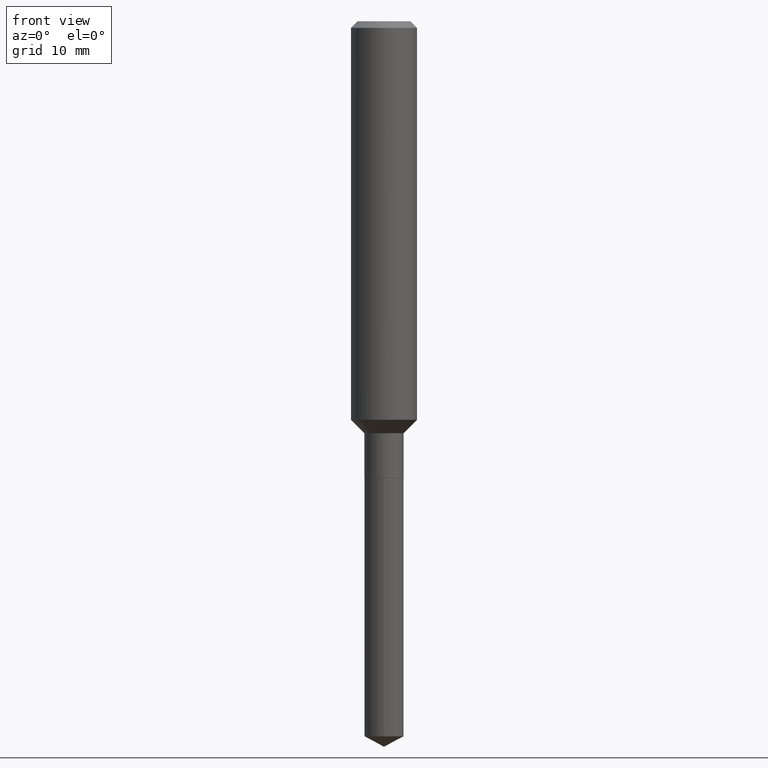
[diagram: clean part render]
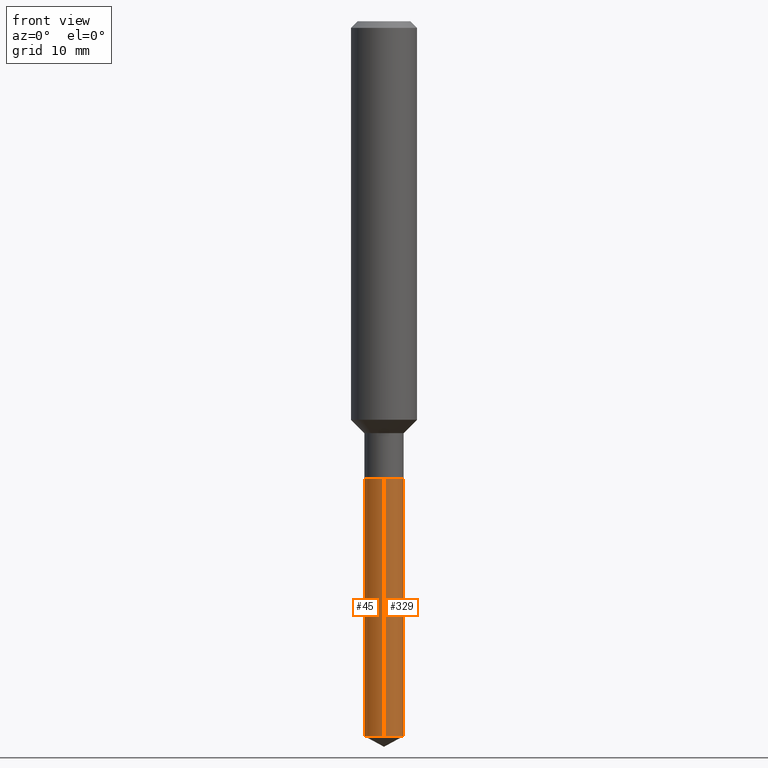
[diagram: same view with one multi-face feature highlighted, each face labeled with its STEP entity id]
A machine part, front view. The highlighted faces form ONE feature: a constant-radius fillet chain: 2 tangent blend faces with common blend radius 1.7856 mm. The faces share edges in the B-rep.
Their STEP definitions:
[1] entity #45 (Cylinder):
#29 = EDGE_CURVE ( 'NONE', #276, #231, #171, .T. ) ;
#31 = DIRECTION ( 'NONE',  ( -2.434697667680016346E-29, 3.506906222237609395E-15, 1.000000000000000000 ) ) ;
#41 = LINE ( 'NONE', #262, #268 ) ;
#45 = ADVANCED_FACE ( 'NONE', ( #398 ), #124, .T. ) ;
#57 = DIRECTION ( 'NONE',  ( -2.434697667680016346E-29, 3.506906222237609395E-15, 1.000000000000000000 ) ) ;
#59 = DIRECTION ( 'NONE',  ( -6.982962677686265133E-15, -1.000000000000000000, 3.885985766236505386E-15 ) ) ;
#60 = CIRCLE ( 'NONE', #294, 0.07030000000000000138 ) ;
#66 = DIRECTION ( 'NONE',  ( -2.434697667680016346E-29, 3.506906222237609395E-15, 1.000000000000000000 ) ) ;
#124 = CYLINDRICAL_SURFACE ( 'NONE', #312, 0.07030000000000000138 ) ;
#166 = DIRECTION ( 'NONE',  ( -6.982962677686266711E-15, -1.000000000000000000, 0.000000000000000000 ) ) ;
#169 = AXIS2_PLACEMENT_3D ( 'NONE', #427, #200, #166 ) ;
#171 = LINE ( 'NONE', #469, #430 ) ;
#174 = CARTESIAN_POINT ( 'NONE',  ( -4.909022762412819371E-16, -0.07030000000000893867, -2.560620826954198126 ) ) ;
#194 = CARTESIAN_POINT ( 'NONE',  ( -4.909022762413044196E-16, -0.07030000000000570515, -1.636599999999999611 ) ) ;
#200 = DIRECTION ( 'NONE',  ( -2.434697667680016346E-29, 3.506906222237609395E-15, 1.000000000000000000 ) ) ;
#219 = EDGE_CURVE ( 'NONE', #402, #276, #416, .T. ) ;
#230 = EDGE_CURVE ( 'NONE', #402, #433, #41, .T. ) ;
#231 = VERTEX_POINT ( 'NONE', #194 ) ;
#255 = CARTESIAN_POINT ( 'NONE',  ( 4.995115432394128591E-16, 0.07029999999999105020, -2.560620826954198126 ) ) ;
#262 = CARTESIAN_POINT ( 'NONE',  ( 4.995115432393903765E-16, 0.07029999999999428373, -1.636600000000000277 ) ) ;
#268 = VECTOR ( 'NONE', #352, 39.37007874015748143 ) ;
#276 = VERTEX_POINT ( 'NONE', #174 ) ;
#294 = AXIS2_PLACEMENT_3D ( 'NONE', #472, #66, #59 ) ;
#309 = EDGE_LOOP ( 'NONE', ( #449, #348, #395, #336 ) ) ;
#312 = AXIS2_PLACEMENT_3D ( 'NONE', #446, #57, #442 ) ;
#319 = EDGE_CURVE ( 'NONE', #433, #231, #60, .T. ) ;
#336 = ORIENTED_EDGE ( 'NONE', *, *, #319, .F. ) ;
#348 = ORIENTED_EDGE ( 'NONE', *, *, #219, .T. ) ;
#352 = DIRECTION ( 'NONE',  ( -2.434697667680016346E-29, 3.506906222237609395E-15, 1.000000000000000000 ) ) ;
#372 = CARTESIAN_POINT ( 'NONE',  ( 4.995115432394131549E-16, 0.07029999999999428373, -1.636600000000000277 ) ) ;
#395 = ORIENTED_EDGE ( 'NONE', *, *, #29, .T. ) ;
#398 = FACE_OUTER_BOUND ( 'NONE', #309, .T. ) ;
#402 = VERTEX_POINT ( 'NONE', #255 ) ;
#416 = CIRCLE ( 'NONE', #169, 0.07030000000000000138 ) ;
#427 = CARTESIAN_POINT ( 'NONE',  ( 6.251965600475741886E-29, -8.954612746673510897E-15, -2.560620826954198126 ) ) ;
#430 = VECTOR ( 'NONE', #31, 39.37007874015748143 ) ;
#433 = VERTEX_POINT ( 'NONE', #372 ) ;
#442 = DIRECTION ( 'NONE',  ( -6.982962677686265133E-15, -1.000000000000000000, 3.885985766236505386E-15 ) ) ;
#446 = CARTESIAN_POINT ( 'NONE',  ( 4.002254248202594022E-29, -5.714158359150691884E-15, -1.636600000000000055 ) ) ;
#449 = ORIENTED_EDGE ( 'NONE', *, *, #230, .F. ) ;
#469 = CARTESIAN_POINT ( 'NONE',  ( -4.909022762413044196E-16, -0.07030000000000570515, -1.636599999999999611 ) ) ;
#472 = CARTESIAN_POINT ( 'NONE',  ( 4.002254248202594022E-29, -5.714158359150691884E-15, -1.636600000000000055 ) ) ;
[2] entity #329 (Cylinder):
#17 = ORIENTED_EDGE ( 'NONE', *, *, #230, .T. ) ;
#29 = EDGE_CURVE ( 'NONE', #276, #231, #171, .T. ) ;
#31 = DIRECTION ( 'NONE',  ( -2.434697667680016346E-29, 3.506906222237609395E-15, 1.000000000000000000 ) ) ;
#41 = LINE ( 'NONE', #262, #268 ) ;
#47 = ORIENTED_EDGE ( 'NONE', *, *, #29, .F. ) ;
#63 = FACE_OUTER_BOUND ( 'NONE', #125, .T. ) ;
#82 = AXIS2_PLACEMENT_3D ( 'NONE', #239, #326, #477 ) ;
#101 = DIRECTION ( 'NONE',  ( -2.434697667680016346E-29, 3.506906222237609395E-15, 1.000000000000000000 ) ) ;
#119 = AXIS2_PLACEMENT_3D ( 'NONE', #444, #101, #368 ) ;
#125 = EDGE_LOOP ( 'NONE', ( #147, #17, #371, #47 ) ) ;
#135 = CYLINDRICAL_SURFACE ( 'NONE', #119, 0.07030000000000000138 ) ;
#147 = ORIENTED_EDGE ( 'NONE', *, *, #261, .T. ) ;
#171 = LINE ( 'NONE', #469, #430 ) ;
#174 = CARTESIAN_POINT ( 'NONE',  ( -4.909022762412819371E-16, -0.07030000000000893867, -2.560620826954198126 ) ) ;
#194 = CARTESIAN_POINT ( 'NONE',  ( -4.909022762413044196E-16, -0.07030000000000570515, -1.636599999999999611 ) ) ;
#230 = EDGE_CURVE ( 'NONE', #402, #433, #41, .T. ) ;
#231 = VERTEX_POINT ( 'NONE', #194 ) ;
#239 = CARTESIAN_POINT ( 'NONE',  ( 4.002254248202594022E-29, -5.714158359150691884E-15, -1.636600000000000055 ) ) ;
#255 = CARTESIAN_POINT ( 'NONE',  ( 4.995115432394128591E-16, 0.07029999999999105020, -2.560620826954198126 ) ) ;
#261 = EDGE_CURVE ( 'NONE', #276, #402, #412, .T. ) ;
#262 = CARTESIAN_POINT ( 'NONE',  ( 4.995115432393903765E-16, 0.07029999999999428373, -1.636600000000000277 ) ) ;
#268 = VECTOR ( 'NONE', #352, 39.37007874015748143 ) ;
#276 = VERTEX_POINT ( 'NONE', #174 ) ;
#289 = DIRECTION ( 'NONE',  ( -2.434697667680016346E-29, 3.506906222237609395E-15, 1.000000000000000000 ) ) ;
#291 = DIRECTION ( 'NONE',  ( -6.982962677686266711E-15, -1.000000000000000000, 0.000000000000000000 ) ) ;
#295 = EDGE_CURVE ( 'NONE', #231, #433, #401, .T. ) ;
#326 = DIRECTION ( 'NONE',  ( -2.434697667680016346E-29, 3.506906222237609395E-15, 1.000000000000000000 ) ) ;
#329 = ADVANCED_FACE ( 'NONE', ( #63 ), #135, .T. ) ;
#352 = DIRECTION ( 'NONE',  ( -2.434697667680016346E-29, 3.506906222237609395E-15, 1.000000000000000000 ) ) ;
#368 = DIRECTION ( 'NONE',  ( -6.982962677686265133E-15, -1.000000000000000000, 3.885985766236505386E-15 ) ) ;
#371 = ORIENTED_EDGE ( 'NONE', *, *, #295, .F. ) ;
#372 = CARTESIAN_POINT ( 'NONE',  ( 4.995115432394131549E-16, 0.07029999999999428373, -1.636600000000000277 ) ) ;
#401 = CIRCLE ( 'NONE', #82, 0.07030000000000000138 ) ;
#402 = VERTEX_POINT ( 'NONE', #255 ) ;
#412 = CIRCLE ( 'NONE', #475, 0.07030000000000000138 ) ;
#430 = VECTOR ( 'NONE', #31, 39.37007874015748143 ) ;
#433 = VERTEX_POINT ( 'NONE', #372 ) ;
#438 = CARTESIAN_POINT ( 'NONE',  ( 6.251965600475741886E-29, -8.954612746673510897E-15, -2.560620826954198126 ) ) ;
#444 = CARTESIAN_POINT ( 'NONE',  ( 4.002254248202594022E-29, -5.714158359150691884E-15, -1.636600000000000055 ) ) ;
#469 = CARTESIAN_POINT ( 'NONE',  ( -4.909022762413044196E-16, -0.07030000000000570515, -1.636599999999999611 ) ) ;
#475 = AXIS2_PLACEMENT_3D ( 'NONE', #438, #289, #291 ) ;
#477 = DIRECTION ( 'NONE',  ( -6.982962677686265133E-15, -1.000000000000000000, 3.885985766236505386E-15 ) ) ;